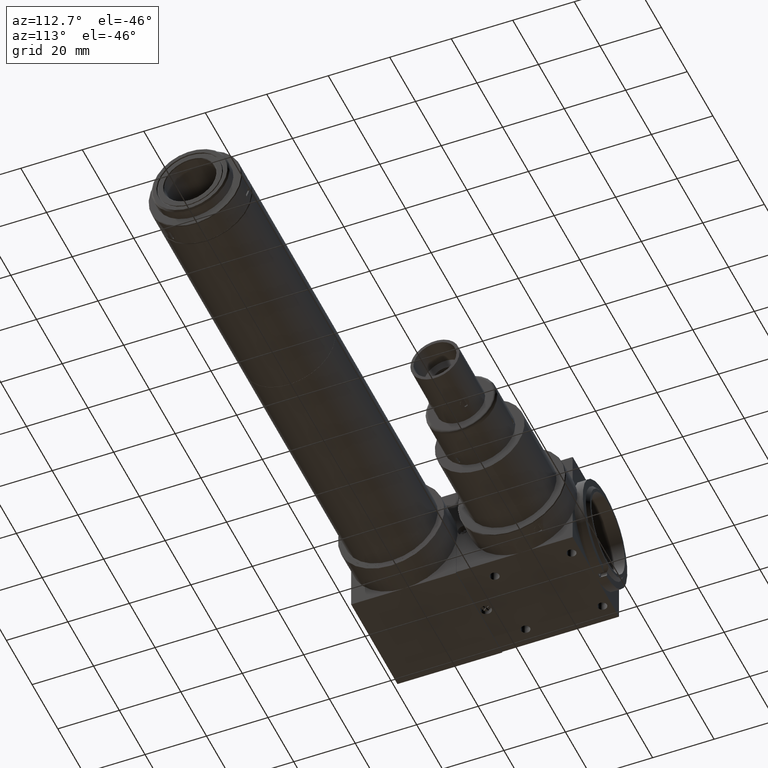
[diagram: clean part render]
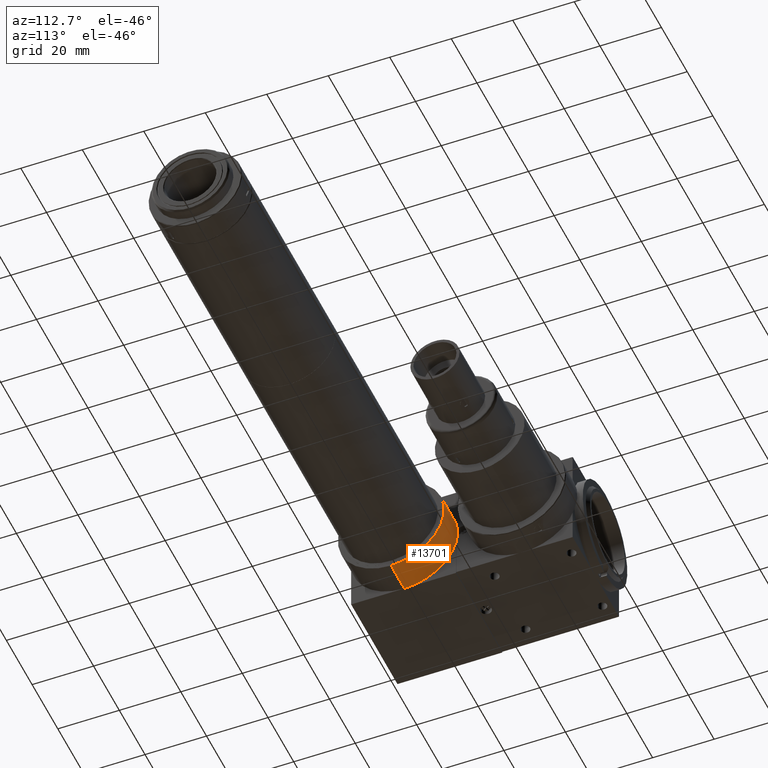
[diagram: same view with one face highlighted and labeled with its STEP entity id]
A machine part, auxiliary view. The second image highlights one B-rep face of the part: STEP entity #13701.
In plain terms, the highlighted cylindrical surface (partial cylindrical patch) has radius 17.3 mm, axis along (-1, 0, 0).
Its self-contained STEP definition (entity closure, byte-faithful):
#470 = DIRECTION ( 'NONE',  ( -1.000000000000000000, 8.881784197001250351E-16, 0.000000000000000000 ) ) ;
#485 = DIRECTION ( 'NONE',  ( 0.000000000000000000, 0.000000000000000000, -1.000000000000000000 ) ) ;
#910 = AXIS2_PLACEMENT_3D ( 'NONE', #8917, #5134, #470 ) ;
#1174 = CYLINDRICAL_SURFACE ( 'NONE', #9187, 17.30000000000000071 ) ;
#2056 = ORIENTED_EDGE ( 'NONE', *, *, #11901, .T. ) ;
#2161 = AXIS2_PLACEMENT_3D ( 'NONE', #7199, #12068, #10887 ) ;
#2381 = ORIENTED_EDGE ( 'NONE', *, *, #5326, .T. ) ;
#2387 = VERTEX_POINT ( 'NONE', #12955 ) ;
#2422 = CIRCLE ( 'NONE', #910, 17.30000000000000071 ) ;
#2605 = CARTESIAN_POINT ( 'NONE',  ( 17.30000000000000071, 2.118638962524921140E-15, 10.33999999999999986 ) ) ;
#2810 = AXIS2_PLACEMENT_3D ( 'NONE', #13286, #7149, #11081 ) ;
#3082 = DIRECTION ( 'NONE',  ( 0.000000000000000000, 0.000000000000000000, 1.000000000000000000 ) ) ;
#4365 = EDGE_CURVE ( 'NONE', #7974, #9338, #12079, .T. ) ;
#4604 = CARTESIAN_POINT ( 'NONE',  ( 17.30000000000000071, 1.397021478619629986E-15, 0.000000000000000000 ) ) ;
#4835 = CIRCLE ( 'NONE', #8869, 17.30000000000000071 ) ;
#5100 = VERTEX_POINT ( 'NONE', #7174 ) ;
#5134 = DIRECTION ( 'NONE',  ( 0.000000000000000000, 0.000000000000000000, 1.000000000000000000 ) ) ;
#5326 = EDGE_CURVE ( 'NONE', #5100, #2387, #4835, .T. ) ;
#5596 = DIRECTION ( 'NONE',  ( -1.000000000000000000, -4.440892098500630106E-15, 0.000000000000000000 ) ) ;
#5743 = EDGE_CURVE ( 'NONE', #7974, #11257, #7749, .T. ) ;
#5829 = FACE_OUTER_BOUND ( 'NONE', #11327, .T. ) ;
#5999 = DIRECTION ( 'NONE',  ( 0.000000000000000000, 0.000000000000000000, -1.000000000000000000 ) ) ;
#6063 = DIRECTION ( 'NONE',  ( -1.000000000000000000, 0.000000000000000000, 0.000000000000000000 ) ) ;
#6095 = VECTOR ( 'NONE', #485, 1000.000000000000000 ) ;
#6350 = CARTESIAN_POINT ( 'NONE',  ( -17.30000000000000071, 0.000000000000000000, 10.33999999999999986 ) ) ;
#6632 = CARTESIAN_POINT ( 'NONE',  ( -17.30000000000000071, 0.000000000000000000, 10.33999999999999986 ) ) ;
#6663 = ORIENTED_EDGE ( 'NONE', *, *, #5743, .F. ) ;
#7149 = DIRECTION ( 'NONE',  ( 0.000000000000000000, 0.000000000000000000, -1.000000000000000000 ) ) ;
#7174 = CARTESIAN_POINT ( 'NONE',  ( 4.129164564412499239, 16.80000000000000071, 0.000000000000000000 ) ) ;
#7199 = CARTESIAN_POINT ( 'NONE',  ( 0.000000000000000000, 0.000000000000000000, 0.000000000000000000 ) ) ;
#7328 = CARTESIAN_POINT ( 'NONE',  ( 0.000000000000000000, 0.000000000000000000, 10.33999999999999986 ) ) ;
#7749 = LINE ( 'NONE', #6632, #6095 ) ;
#7775 = CARTESIAN_POINT ( 'NONE',  ( -17.30000000000000071, 0.000000000000000000, 0.000000000000000000 ) ) ;
#7974 = VERTEX_POINT ( 'NONE', #6350 ) ;
#8316 = VERTEX_POINT ( 'NONE', #4604 ) ;
#8869 = AXIS2_PLACEMENT_3D ( 'NONE', #10090, #3082, #5596 ) ;
#8917 = CARTESIAN_POINT ( 'NONE',  ( 0.000000000000000000, 0.000000000000000000, 0.000000000000000000 ) ) ;
#9187 = AXIS2_PLACEMENT_3D ( 'NONE', #7328, #14406, #6063 ) ;
#9338 = VERTEX_POINT ( 'NONE', #2605 ) ;
#9763 = EDGE_CURVE ( 'NONE', #8316, #5100, #14988, .T. ) ;
#10090 = CARTESIAN_POINT ( 'NONE',  ( 0.000000000000000000, 0.000000000000000000, 0.000000000000000000 ) ) ;
#10638 = LINE ( 'NONE', #10870, #11960 ) ;
#10870 = CARTESIAN_POINT ( 'NONE',  ( 17.30000000000000071, 2.118638962524921140E-15, 10.33999999999999986 ) ) ;
#10887 = DIRECTION ( 'NONE',  ( -1.000000000000000000, 8.881784197001250351E-16, 0.000000000000000000 ) ) ;
#11081 = DIRECTION ( 'NONE',  ( -1.000000000000000000, 0.000000000000000000, 0.000000000000000000 ) ) ;
#11257 = VERTEX_POINT ( 'NONE', #7775 ) ;
#11327 = EDGE_LOOP ( 'NONE', ( #13826, #14573, #15341, #2381, #2056, #6663 ) ) ;
#11861 = EDGE_CURVE ( 'NONE', #9338, #8316, #10638, .T. ) ;
#11901 = EDGE_CURVE ( 'NONE', #2387, #11257, #2422, .T. ) ;
#11960 = VECTOR ( 'NONE', #5999, 1000.000000000000000 ) ;
#12068 = DIRECTION ( 'NONE',  ( 0.000000000000000000, 0.000000000000000000, 1.000000000000000000 ) ) ;
#12079 = CIRCLE ( 'NONE', #2810, 17.30000000000000071 ) ;
#12955 = CARTESIAN_POINT ( 'NONE',  ( -4.129164564412499239, 16.80000000000000071, 0.000000000000000000 ) ) ;
#13286 = CARTESIAN_POINT ( 'NONE',  ( 0.000000000000000000, 0.000000000000000000, 10.33999999999999986 ) ) ;
#13701 = ADVANCED_FACE ( 'NONE', ( #5829 ), #1174, .T. ) ;
#13826 = ORIENTED_EDGE ( 'NONE', *, *, #4365, .T. ) ;
#14406 = DIRECTION ( 'NONE',  ( 0.000000000000000000, 0.000000000000000000, -1.000000000000000000 ) ) ;
#14573 = ORIENTED_EDGE ( 'NONE', *, *, #11861, .T. ) ;
#14988 = CIRCLE ( 'NONE', #2161, 17.30000000000000071 ) ;
#15341 = ORIENTED_EDGE ( 'NONE', *, *, #9763, .T. ) ;